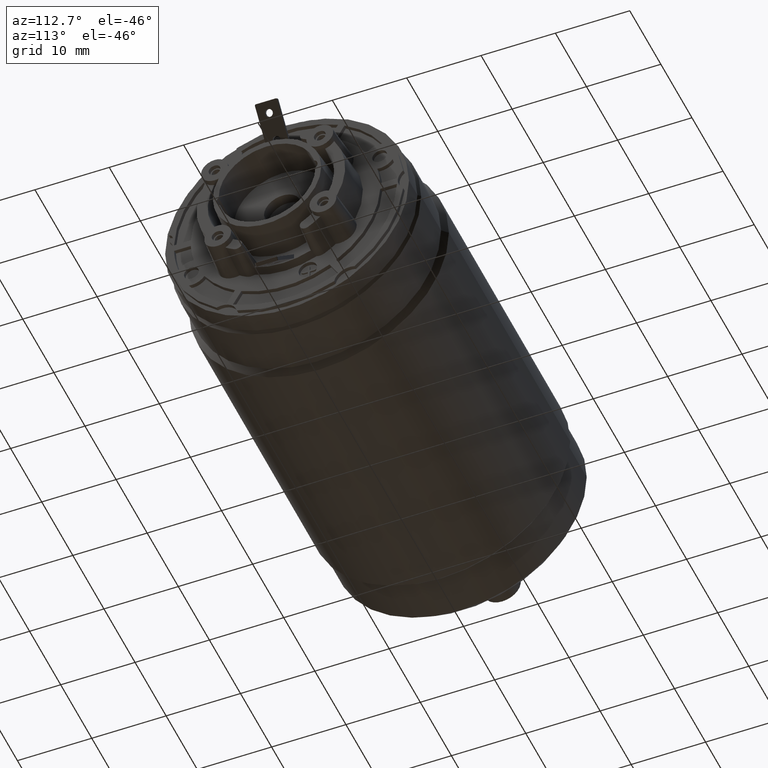
[diagram: clean part render]
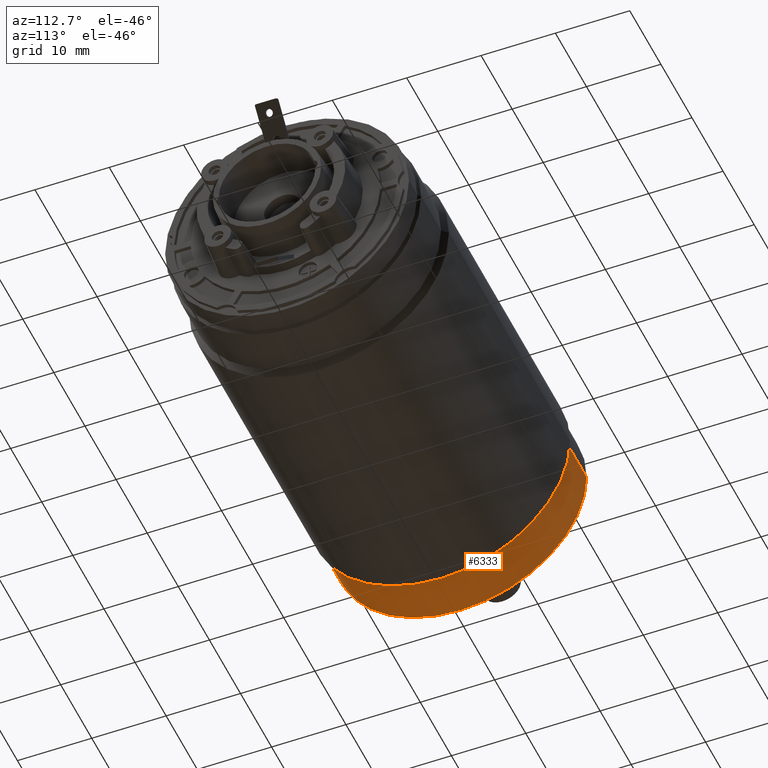
[diagram: same view with one face highlighted and labeled with its STEP entity id]
A machine part, auxiliary view. The second image highlights one B-rep face of the part: STEP entity #6333.
In plain terms, the highlighted cylindrical surface (partial cylindrical patch) has radius 17 mm, axis along (-1, 0, 0).
Its self-contained STEP definition (entity closure, byte-faithful):
#2219=DIRECTION('',(-1.E0,0.E0,0.E0));
#2220=VECTOR('',#2219,5.999999999999E0);
#2221=CARTESIAN_POINT('',(-4.296E1,1.7E1,0.E0));
#2222=LINE('',#2221,#2220);
#2228=DIRECTION('',(-1.E0,0.E0,0.E0));
#2229=VECTOR('',#2228,5.999999999999E0);
#2230=CARTESIAN_POINT('',(-4.296E1,-1.7E1,0.E0));
#2231=LINE('',#2230,#2229);
#2232=CARTESIAN_POINT('',(-4.296E1,0.E0,0.E0));
#2233=DIRECTION('',(-1.E0,0.E0,0.E0));
#2234=DIRECTION('',(0.E0,1.E0,0.E0));
#2235=AXIS2_PLACEMENT_3D('',#2232,#2233,#2234);
#2237=CARTESIAN_POINT('',(-4.896E1,0.E0,0.E0));
#2238=DIRECTION('',(-1.E0,0.E0,0.E0));
#2239=DIRECTION('',(0.E0,1.E0,0.E0));
#2240=AXIS2_PLACEMENT_3D('',#2237,#2238,#2239);
#3266=CARTESIAN_POINT('',(-4.296E1,1.7E1,0.E0));
#3267=VERTEX_POINT('',#3266);
#3268=CARTESIAN_POINT('',(-4.896E1,1.7E1,0.E0));
#3269=VERTEX_POINT('',#3268);
#3284=CARTESIAN_POINT('',(-4.296E1,-1.7E1,0.E0));
#3285=VERTEX_POINT('',#3284);
#3286=CARTESIAN_POINT('',(-4.896E1,-1.7E1,0.E0));
#3287=VERTEX_POINT('',#3286);
#6321=CARTESIAN_POINT('',(9.575E0,0.E0,0.E0));
#6322=DIRECTION('',(-1.E0,0.E0,0.E0));
#6323=DIRECTION('',(0.E0,1.E0,0.E0));
#6324=AXIS2_PLACEMENT_3D('',#6321,#6322,#6323);
#6325=CYLINDRICAL_SURFACE('',#6324,1.7E1);
#6326=ORIENTED_EDGE('',*,*,#6311,.T.);
#6328=ORIENTED_EDGE('',*,*,#6327,.T.);
#6329=ORIENTED_EDGE('',*,*,#6314,.F.);
#6330=ORIENTED_EDGE('',*,*,#6285,.F.);
#6331=EDGE_LOOP('',(#6326,#6328,#6329,#6330));
#6332=FACE_OUTER_BOUND('',#6331,.F.);
#6333=ADVANCED_FACE('',(#6332),#6325,.T.);
#2236=CIRCLE('',#2235,1.7E1);
#2241=CIRCLE('',#2240,1.7E1);
#6285=EDGE_CURVE('',#3267,#3285,#2236,.T.);
#6311=EDGE_CURVE('',#3267,#3269,#2222,.T.);
#6314=EDGE_CURVE('',#3285,#3287,#2231,.T.);
#6327=EDGE_CURVE('',#3269,#3287,#2241,.T.);